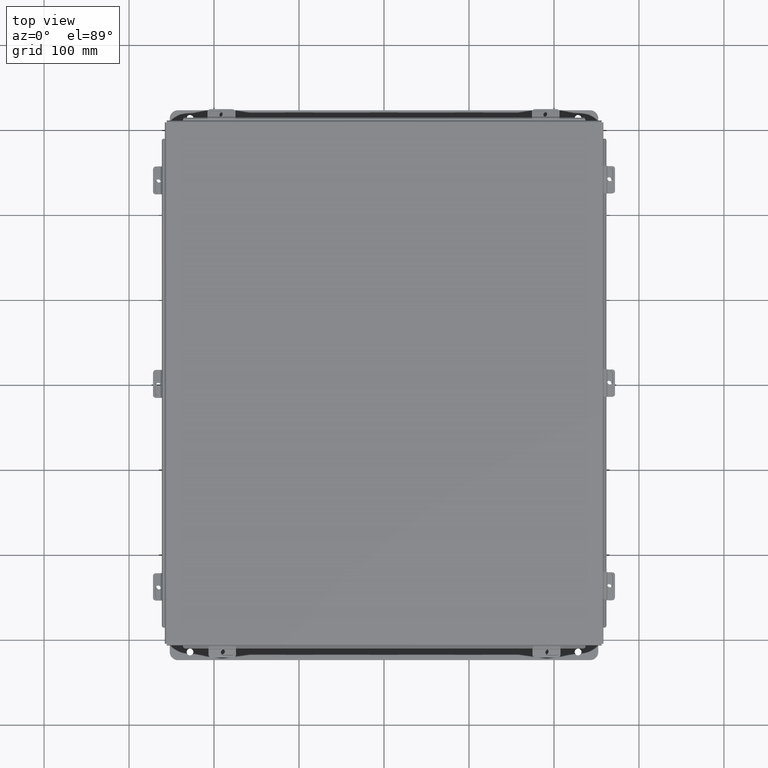
[diagram: clean part render]
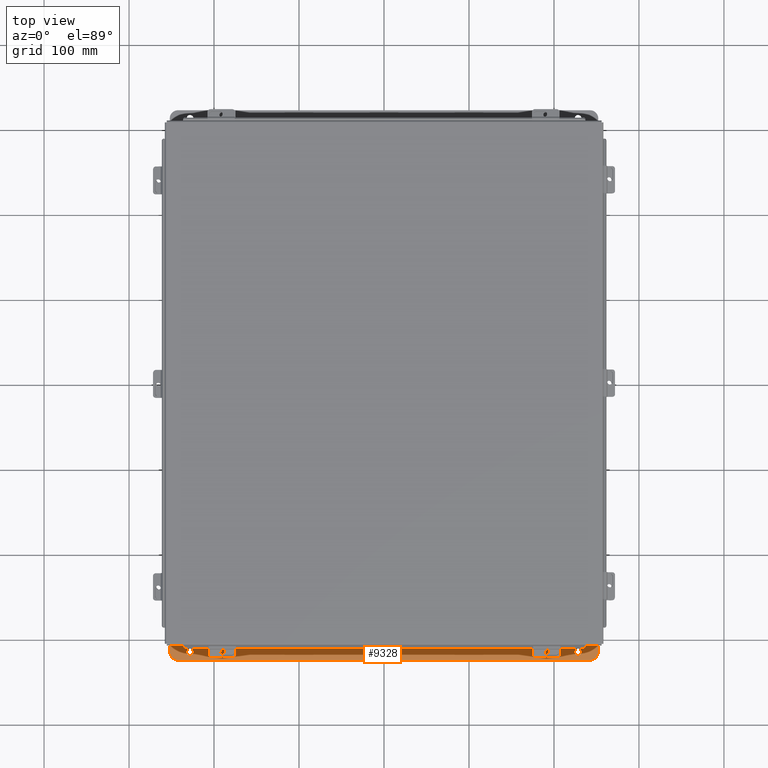
[diagram: same view with one face highlighted and labeled with its STEP entity id]
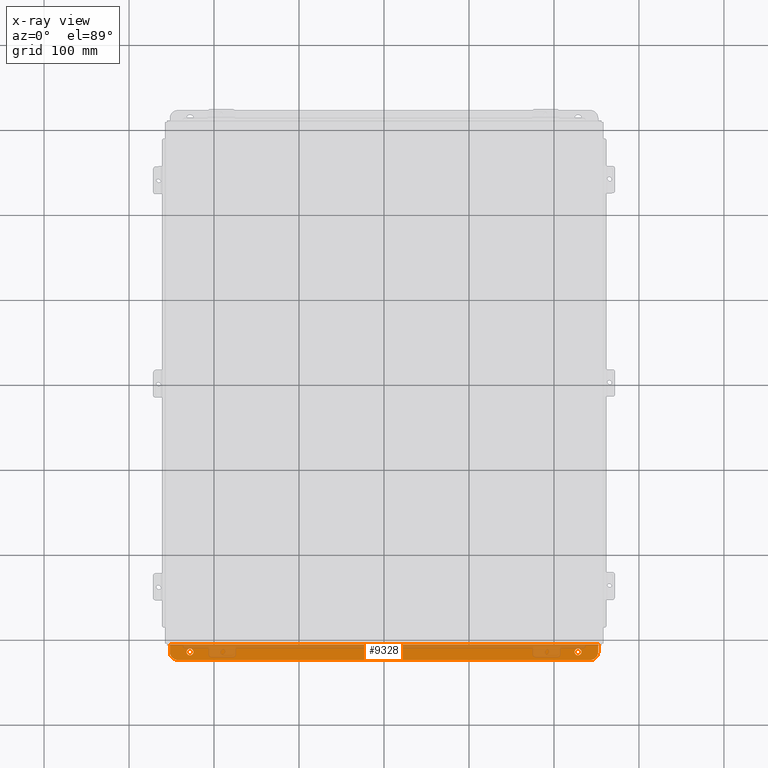
[diagram: x-ray of the same camera — body ghosted, the highlighted face saturated]
A machine part, top view. The second image highlights one B-rep face of the part: STEP entity #9328.
The next image is the same camera in x-ray: the body ghosted, the highlighted face saturated — about 32% of this face is hidden behind the body in this view.
In plain terms, the highlighted planar face has unit normal (0, -0, 1).
Its self-contained STEP definition (entity closure, byte-faithful):
#49 = VECTOR ( 'NONE', #9977, 39.37007874015748100 ) ;
#71 = DIRECTION ( 'NONE',  ( -0.0000000000000000000, -3.702694488566362300E-015, -1.000000000000000000 ) ) ;
#247 = VERTEX_POINT ( 'NONE', #8265 ) ;
#300 = LINE ( 'NONE', #378, #3525 ) ;
#375 = AXIS2_PLACEMENT_3D ( 'NONE', #2563, #8000, #3355 ) ;
#378 = CARTESIAN_POINT ( 'NONE',  ( 9.925300000000000000, 0.0000000000000000000, -3.112299999999995800 ) ) ;
#724 = DIRECTION ( 'NONE',  ( 0.0000000000000000000, 3.702694488566362300E-015, 1.000000000000000000 ) ) ;
#1098 = EDGE_CURVE ( 'NONE', #1501, #3222, #6236, .T. ) ;
#1381 = CARTESIAN_POINT ( 'NONE',  ( -8.987799999999985800, 0.5187999999999988200, -3.112299999999997200 ) ) ;
#1382 = DIRECTION ( 'NONE',  ( 0.0000000000000000000, -1.000000000000000000, 3.502369222646487400E-015 ) ) ;
#1501 = VERTEX_POINT ( 'NONE', #7901 ) ;
#1780 = ORIENTED_EDGE ( 'NONE', *, *, #1098, .T. ) ;
#1901 = EDGE_CURVE ( 'NONE', #247, #2926, #3285, .T. ) ;
#1919 = AXIS2_PLACEMENT_3D ( 'NONE', #3312, #8754, #4076 ) ;
#1955 = DIRECTION ( 'NONE',  ( -0.0000000000000000000, -3.702694488566362300E-015, -1.000000000000000000 ) ) ;
#2078 = CARTESIAN_POINT ( 'NONE',  ( 8.987800000000008900, 0.3628000000000008400, -3.112300000000001200 ) ) ;
#2190 = FACE_OUTER_BOUND ( 'NONE', #3896, .T. ) ;
#2191 = EDGE_CURVE ( 'NONE', #6856, #247, #300, .T. ) ;
#2202 = CIRCLE ( 'NONE', #5283, 0.1560000000000001700 ) ;
#2290 = VERTEX_POINT ( 'NONE', #4268 ) ;
#2390 = CARTESIAN_POINT ( 'NONE',  ( -8.987799999999985800, 0.3627999999999986800, -3.112299999999996700 ) ) ;
#2563 = CARTESIAN_POINT ( 'NONE',  ( -8.987799999999985800, 0.3627999999999986800, -3.112299999999996700 ) ) ;
#2725 = CARTESIAN_POINT ( 'NONE',  ( -9.925299999999980500, 0.7377999999999989000, -3.112300000000003000 ) ) ;
#2854 = DIRECTION ( 'NONE',  ( 0.0000000000000000000, -1.000000000000000000, 3.502369222646487400E-015 ) ) ;
#2867 = CARTESIAN_POINT ( 'NONE',  ( 8.987800000000008900, 0.5188000000000010400, -3.112300000000001600 ) ) ;
#2926 = VERTEX_POINT ( 'NONE', #8679 ) ;
#3074 = CIRCLE ( 'NONE', #5386, 0.1560000000000001700 ) ;
#3222 = VERTEX_POINT ( 'NONE', #8875 ) ;
#3285 = LINE ( 'NONE', #9838, #49 ) ;
#3312 = CARTESIAN_POINT ( 'NONE',  ( 9.550300000000008900, 0.3628000000000008400, -3.112299999999996700 ) ) ;
#3352 = CARTESIAN_POINT ( 'NONE',  ( -9.550299999999989400, 0.3627999999999986800, -3.112300000000001200 ) ) ;
#3355 = DIRECTION ( 'NONE',  ( 0.0000000000000000000, -1.000000000000000000, 3.502369222646487400E-015 ) ) ;
#3375 = DIRECTION ( 'NONE',  ( 0.0000000000000000000, -1.000000000000000000, 4.370956789862820400E-015 ) ) ;
#3525 = VECTOR ( 'NONE', #5621, 39.37007874015748100 ) ;
#3577 = ORIENTED_EDGE ( 'NONE', *, *, #7877, .T. ) ;
#3894 = ORIENTED_EDGE ( 'NONE', *, *, #7753, .F. ) ;
#3896 = EDGE_LOOP ( 'NONE', ( #3894, #1780, #7543, #7672, #6238, #8963 ) ) ;
#3956 = CARTESIAN_POINT ( 'NONE',  ( 9.925300000000017800, 0.7378000000000011200, -3.112300000000003000 ) ) ;
#4039 = EDGE_CURVE ( 'NONE', #2926, #3222, #4585, .T. ) ;
#4076 = DIRECTION ( 'NONE',  ( 0.0000000000000000000, -1.000000000000000000, 4.370956789862820400E-015 ) ) ;
#4227 = VECTOR ( 'NONE', #4705, 39.37007874015748100 ) ;
#4268 = CARTESIAN_POINT ( 'NONE',  ( 9.550300000000008900, 0.7378000000000011200, -3.112300000000003000 ) ) ;
#4344 = CARTESIAN_POINT ( 'NONE',  ( -8.987799999999985800, 0.2067999999999984900, -3.112299999999996300 ) ) ;
#4379 = CIRCLE ( 'NONE', #9353, 0.1560000000000001700 ) ;
#4585 = LINE ( 'NONE', #2725, #7005 ) ;
#4705 = DIRECTION ( 'NONE',  ( 1.000000000000000000, 4.910036603141682400E-031, -0.0000000000000000000 ) ) ;
#4768 = ORIENTED_EDGE ( 'NONE', *, *, #8758, .T. ) ;
#5283 = AXIS2_PLACEMENT_3D ( 'NONE', #2078, #7492, #2854 ) ;
#5386 = AXIS2_PLACEMENT_3D ( 'NONE', #8227, #1955, #8196 ) ;
#5621 = DIRECTION ( 'NONE',  ( -4.919856193148104900E-031, -1.000000000000000000, 3.702694488566362300E-015 ) ) ;
#5662 = VERTEX_POINT ( 'NONE', #6864 ) ;
#5688 = EDGE_CURVE ( 'NONE', #9262, #9227, #4379, .T. ) ;
#5723 = DIRECTION ( 'NONE',  ( 0.0000000000000000000, 3.702694488566362300E-015, 1.000000000000000000 ) ) ;
#5920 = EDGE_CURVE ( 'NONE', #5662, #8015, #3074, .T. ) ;
#6039 = CARTESIAN_POINT ( 'NONE',  ( -2.035385365534024800E-024, -1.092739197465705300E-014, -3.112299999999999800 ) ) ;
#6076 = DIRECTION ( 'NONE',  ( -4.919856193148104900E-031, -1.000000000000000000, 3.702694488566362300E-015 ) ) ;
#6236 = CIRCLE ( 'NONE', #8707, 0.3750000000000000600 ) ;
#6238 = ORIENTED_EDGE ( 'NONE', *, *, #2191, .F. ) ;
#6308 = FACE_BOUND ( 'NONE', #6524, .T. ) ;
#6524 = EDGE_LOOP ( 'NONE', ( #8899, #3577 ) ) ;
#6712 = CIRCLE ( 'NONE', #1919, 0.3750000000000000600 ) ;
#6849 = CARTESIAN_POINT ( 'NONE',  ( 9.925300000000017800, 0.3628000000000008400, -3.112300000000001200 ) ) ;
#6856 = VERTEX_POINT ( 'NONE', #6849 ) ;
#6864 = CARTESIAN_POINT ( 'NONE',  ( 8.987800000000008900, 0.2068000000000006800, -3.112300000000000700 ) ) ;
#7005 = VECTOR ( 'NONE', #7012, 39.37007874015748100 ) ;
#7012 = DIRECTION ( 'NONE',  ( 4.919856193148104900E-031, 1.000000000000000000, -3.702694488566362300E-015 ) ) ;
#7183 = AXIS2_PLACEMENT_3D ( 'NONE', #6039, #724, #6076 ) ;
#7492 = DIRECTION ( 'NONE',  ( -0.0000000000000000000, -3.702694488566362300E-015, -1.000000000000000000 ) ) ;
#7543 = ORIENTED_EDGE ( 'NONE', *, *, #4039, .F. ) ;
#7672 = ORIENTED_EDGE ( 'NONE', *, *, #1901, .F. ) ;
#7753 = EDGE_CURVE ( 'NONE', #1501, #2290, #8399, .T. ) ;
#7877 = EDGE_CURVE ( 'NONE', #9227, #9262, #9242, .T. ) ;
#7901 = CARTESIAN_POINT ( 'NONE',  ( -9.550299999999989400, 0.7377999999999989000, -3.112299999999998500 ) ) ;
#8000 = DIRECTION ( 'NONE',  ( -0.0000000000000000000, -3.702694488566362300E-015, -1.000000000000000000 ) ) ;
#8015 = VERTEX_POINT ( 'NONE', #2867 ) ;
#8160 = ORIENTED_EDGE ( 'NONE', *, *, #5920, .T. ) ;
#8196 = DIRECTION ( 'NONE',  ( 0.0000000000000000000, -1.000000000000000000, 3.502369222646487400E-015 ) ) ;
#8227 = CARTESIAN_POINT ( 'NONE',  ( 8.987800000000008900, 0.3628000000000008400, -3.112300000000001200 ) ) ;
#8265 = CARTESIAN_POINT ( 'NONE',  ( 9.925300000000000000, 0.01300000000000010700, -3.112299999999995800 ) ) ;
#8399 = LINE ( 'NONE', #3956, #4227 ) ;
#8479 = EDGE_CURVE ( 'NONE', #6856, #2290, #6712, .T. ) ;
#8652 = FACE_BOUND ( 'NONE', #9703, .T. ) ;
#8679 = CARTESIAN_POINT ( 'NONE',  ( -9.925299999999992900, 0.01299999999999792100, -3.112299999999999800 ) ) ;
#8707 = AXIS2_PLACEMENT_3D ( 'NONE', #3352, #5723, #3375 ) ;
#8754 = DIRECTION ( 'NONE',  ( 0.0000000000000000000, 3.702694488566362300E-015, 1.000000000000000000 ) ) ;
#8758 = EDGE_CURVE ( 'NONE', #8015, #5662, #2202, .T. ) ;
#8875 = CARTESIAN_POINT ( 'NONE',  ( -9.925299999999980500, 0.3627999999999986800, -3.112299999999996700 ) ) ;
#8899 = ORIENTED_EDGE ( 'NONE', *, *, #5688, .T. ) ;
#8963 = ORIENTED_EDGE ( 'NONE', *, *, #8479, .T. ) ;
#9227 = VERTEX_POINT ( 'NONE', #4344 ) ;
#9242 = CIRCLE ( 'NONE', #375, 0.1560000000000001700 ) ;
#9262 = VERTEX_POINT ( 'NONE', #1381 ) ;
#9328 = ADVANCED_FACE ( 'NONE', ( #6308, #8652, #2190 ), #9981, .T. ) ;
#9353 = AXIS2_PLACEMENT_3D ( 'NONE', #2390, #71, #1382 ) ;
#9703 = EDGE_LOOP ( 'NONE', ( #4768, #8160 ) ) ;
#9838 = CARTESIAN_POINT ( 'NONE',  ( 9.925300000000000000, 0.01300000000000010700, -3.112299999999995800 ) ) ;
#9977 = DIRECTION ( 'NONE',  ( -1.000000000000000000, -4.910036603141682400E-031, 0.0000000000000000000 ) ) ;
#9981 = PLANE ( 'NONE',  #7183 ) ;